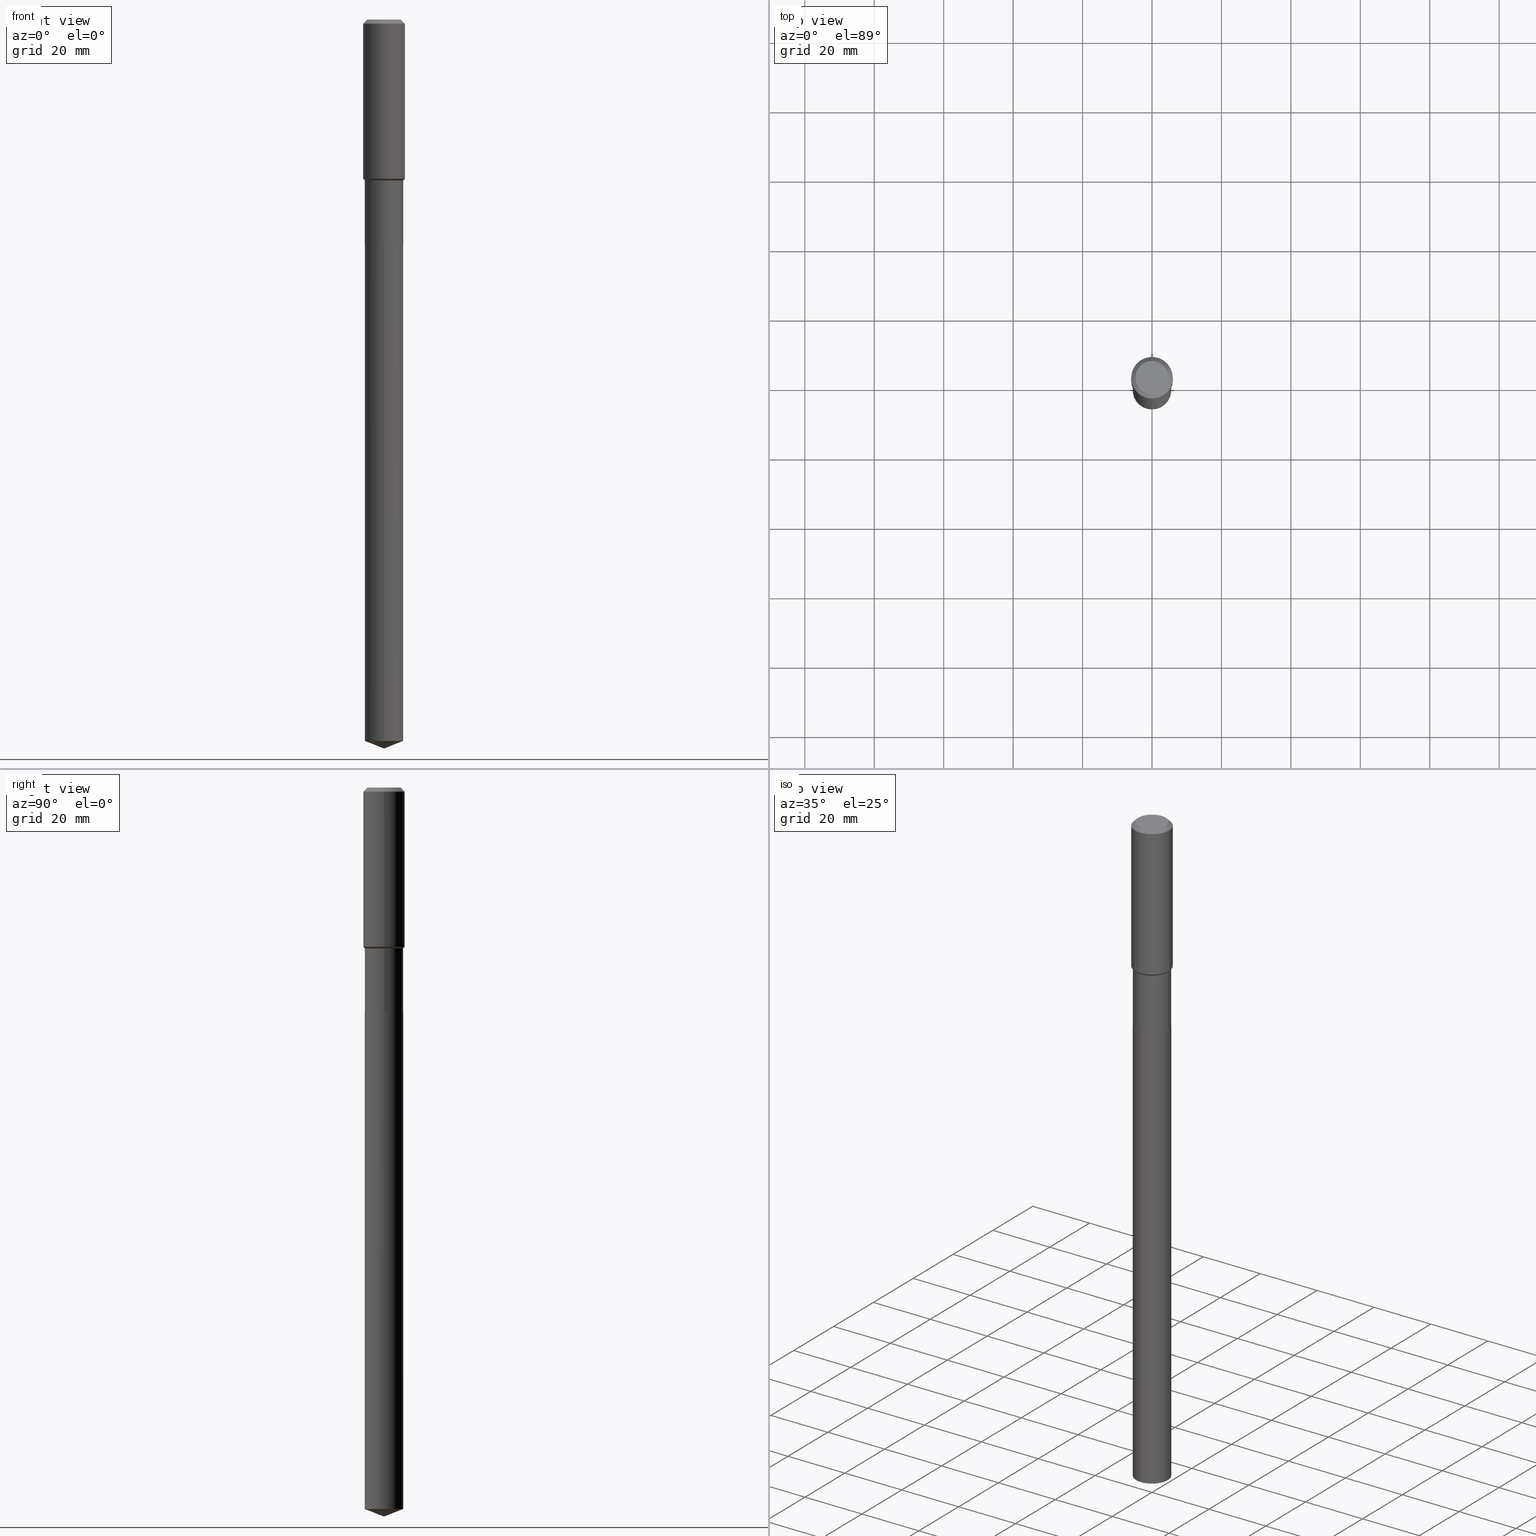
[diagram: canonical four-view strip — front | top / right | iso, engineering-drawing reading convention]
A machine part, canonical four-view strip (front | top / right | iso — engineering-drawing reading convention). The complete STEP part file that produces these views, byte-faithful:
ISO-10303-21;
HEADER;
FILE_DESCRIPTION (( 'STEP AP203' ),
    '1' );
FILE_NAME ('56533.STEP',
    '2024-04-24T18:20:22',
    ( '' ),
    ( '' ),
    'SwSTEP 2.0',
    'SolidWorks 2023',
    '' );
FILE_SCHEMA (( 'CONFIG_CONTROL_DESIGN' ));
ENDSEC;

DATA;
#1 = CONICAL_SURFACE ( 'NONE', #279, 99.94676754583925060, 1.195550537616117071 ) ;
#2 = CARTESIAN_POINT ( 'NONE',  ( 0.2187499999999998890, -7.897381640329306289E-15, -1.824400000000000244 ) ) ;
#3 = ADVANCED_FACE ( 'NONE', ( #439 ), #349, .F. ) ;
#4 = DIRECTION ( 'NONE',  ( -2.445468806185136597E-29, 3.491481338843145583E-15, 1.000000000000000000 ) ) ;
#5 = DIRECTION ( 'NONE',  ( -2.445468806185136597E-29, 3.491481338843145583E-15, 1.000000000000000000 ) ) ;
#6 = CIRCLE ( 'NONE', #78, 0.2362000000000002153 ) ;
#7 = VERTEX_POINT ( 'NONE', #358 ) ;
#8 = EDGE_CURVE ( 'NONE', #356, #156, #481, .T. ) ;
#9 = DIRECTION ( 'NONE',  ( -0.7071067811865461294, 7.493145998870349427E-15, 0.7071067811865489050 ) ) ;
#10 = VECTOR ( 'NONE', #82, 39.37007874015748143 ) ;
#11 = ORIENTED_EDGE ( 'NONE', *, *, #335, .T. ) ;
#12 = CARTESIAN_POINT ( 'NONE',  ( 1.554312234475420316E-15, 0.2187499999999911182, -2.546300000000000452 ) ) ;
#13 = DATE_TIME_ROLE ( 'classification_date' ) ;
#14 = ORIENTED_EDGE ( 'NONE', *, *, #475, .T. ) ;
#15 = LINE ( 'NONE', #56, #164 ) ;
#16 = ORIENTED_EDGE ( 'NONE', *, *, #340, .F. ) ;
#17 = ORIENTED_EDGE ( 'NONE', *, *, #157, .T. ) ;
#18 = ADVANCED_FACE ( 'NONE', ( #305 ), #81, .T. ) ;
#19 = DIRECTION ( 'NONE',  ( 0.000000000000000000, 0.000000000000000000, 1.000000000000000000 ) ) ;
#20 = CARTESIAN_POINT ( 'NONE',  ( 1.554312234475281279E-15, 0.2187499999999911182, -2.546300000000000452 ) ) ;
#21 = DIRECTION ( 'NONE',  ( 1.000000000000000000, -6.982962677686265922E-15, 4.876176775795935793E-29 ) ) ;
#22 = AXIS2_PLACEMENT_3D ( 'NONE', #38, #292, #115 ) ;
#23 = CC_DESIGN_DATE_AND_TIME_ASSIGNMENT ( #191, #13, ( #151 ) ) ;
#24 = ORIENTED_EDGE ( 'NONE', *, *, #91, .T. ) ;
#25 = EDGE_CURVE ( 'NONE', #51, #442, #420, .T. ) ;
#26 = DIRECTION ( 'NONE',  ( 1.000000000000000000, -6.982962677686266711E-15, 0.000000000000000000 ) ) ;
#27 = PERSON_AND_ORGANIZATION ( #197, #321 ) ;
#28 = ORIENTED_EDGE ( 'NONE', *, *, #25, .F. ) ;
#29 = EDGE_CURVE ( 'NONE', #276, #168, #309, .T. ) ;
#30 = EDGE_LOOP ( 'NONE', ( #61, #299, #58, #129 ) ) ;
#31 = VECTOR ( 'NONE', #41, 39.37007874015748143 ) ;
#32 = LOCAL_TIME ( 14, 20, 22.00000000000000000, #314 ) ;
#33 = DIRECTION ( 'NONE',  ( -2.445520389880296907E-29, 3.491407468055714377E-15, 1.000000000000000000 ) ) ;
#34 = EDGE_CURVE ( 'NONE', #442, #51, #177, .T. ) ;
#35 = AXIS2_PLACEMENT_3D ( 'NONE', #261, #72, #415 ) ;
#36 = DIRECTION ( 'NONE',  ( -2.445468806185136597E-29, 3.491481338843145583E-15, 1.000000000000000000 ) ) ;
#37 = CARTESIAN_POINT ( 'NONE',  ( 6.225674486786120359E-29, -8.888613192426879403E-15, -2.545799999999999841 ) ) ;
#38 = CARTESIAN_POINT ( 'NONE',  ( 1.155239464041865331E-30, -1.649375784469511612E-16, -0.04724000000000027483 ) ) ;
#39 = ADVANCED_FACE ( 'NONE', ( #331 ), #487, .F. ) ;
#40 = ADVANCED_FACE ( 'NONE', ( #255 ), #199, .T. ) ;
#41 = DIRECTION ( 'NONE',  ( -2.445468806185136877E-29, 3.491481338843145188E-15, 1.000000000000000000 ) ) ;
#42 = CARTESIAN_POINT ( 'NONE',  ( -7.606089907428060857E-28, 1.085898418882566516E-13, 31.10207874015748430 ) ) ;
#43 = AXIS2_PLACEMENT_3D ( 'NONE', #263, #5, #311 ) ;
#44 = DIRECTION ( 'NONE',  ( -6.982962677686265133E-15, -1.000000000000000000, 2.497689594207326371E-15 ) ) ;
#45 = PERSON_AND_ORGANIZATION ( #197, #321 ) ;
#46 = DIRECTION ( 'NONE',  ( 2.445468806185136597E-29, -3.491481338843145583E-15, -1.000000000000000000 ) ) ;
#47 = APPROVAL ( #123, 'UNSPECIFIED' ) ;
#48 = VECTOR ( 'NONE', #225, 39.37007874015748143 ) ;
#49 = PRODUCT_DEFINITION_FORMATION_WITH_SPECIFIED_SOURCE ( 'ANY', '', #488, .NOT_KNOWN. ) ;
#50 = CARTESIAN_POINT ( 'NONE',  ( -9.427742298522546243E-47, 1.346031739168365344E-32, 3.855188123715862256E-18 ) ) ;
#51 = VERTEX_POINT ( 'NONE', #373 ) ;
#52 = DIRECTION ( 'NONE',  ( 2.445468806185136597E-29, -3.491481338843145583E-15, -1.000000000000000000 ) ) ;
#53 = DATE_AND_TIME ( #476, #32 ) ;
#54 = ORIENTED_EDGE ( 'NONE', *, *, #460, .F. ) ;
#55 = EDGE_CURVE ( 'NONE', #228, #482, #113, .T. ) ;
#56 = CARTESIAN_POINT ( 'NONE',  ( 0.2361999999999999933, -1.785387205520586782E-15, -0.04724000000000027483 ) ) ;
#57 = COORDINATED_UNIVERSAL_TIME_OFFSET ( 5, 0, .BEHIND. ) ;
#58 = ORIENTED_EDGE ( 'NONE', *, *, #55, .T. ) ;
#59 = CIRCLE ( 'NONE', #322, 0.2182499999999999996 ) ;
#60 = DIRECTION ( 'NONE',  ( -2.445468806185136877E-29, 3.491481338843145188E-15, 1.000000000000000000 ) ) ;
#61 = ORIENTED_EDGE ( 'NONE', *, *, #281, .F. ) ;
#62 = CC_DESIGN_APPROVAL ( #300, ( #397 ) ) ;
#63 = ORIENTED_EDGE ( 'NONE', *, *, #490, .T. ) ;
#64 = CYLINDRICAL_SURFACE ( 'NONE', #258, 0.2187499999999999445 ) ;
#65 = DIRECTION ( 'NONE',  ( -2.438088387897960049E-29, 3.491481338843145188E-15, 1.000000000000000000 ) ) ;
#66 = LINE ( 'NONE', #391, #407 ) ;
#67 = DIRECTION ( 'NONE',  ( -2.445468806185136597E-29, 3.491481338843145583E-15, 1.000000000000000000 ) ) ;
#68 = AXIS2_PLACEMENT_3D ( 'NONE', #350, #52, #431 ) ;
#69 = CC_DESIGN_APPROVAL ( #47, ( #151 ) ) ;
#70 = CYLINDRICAL_SURFACE ( 'NONE', #239, 0.2362000000000001043 ) ;
#71 = DIRECTION ( 'NONE',  ( -2.445468806185136597E-29, 3.491481338843145583E-15, 1.000000000000000000 ) ) ;
#72 = DIRECTION ( 'NONE',  ( -2.445468806185136597E-29, 3.491481338843145583E-15, 1.000000000000000000 ) ) ;
#73 = CONICAL_SURFACE ( 'NONE', #135, 0.2187499999999998890, 0.7853981633974463916 ) ;
#74 = ORIENTED_EDGE ( 'NONE', *, *, #170, .T. ) ;
#75 = EDGE_CURVE ( 'NONE', #356, #110, #334, .T. ) ;
#76 = CARTESIAN_POINT ( 'NONE',  ( 0.2187499999999999445, -1.527523085743870449E-15, 1.066663669705360604E-29 ) ) ;
#77 = LINE ( 'NONE', #76, #31 ) ;
#78 = AXIS2_PLACEMENT_3D ( 'NONE', #219, #413, #218 ) ;
#79 = CIRCLE ( 'NONE', #375, 0.2187500000000000000 ) ;
#80 = DIRECTION ( 'NONE',  ( -2.445520389880296907E-29, 3.491407468055714377E-15, 1.000000000000000000 ) ) ;
#81 = CONICAL_SURFACE ( 'NONE', #459, 99.94676754583925060, 1.195550537616117071 ) ;
#82 = DIRECTION ( 'NONE',  ( -2.445520389880296907E-29, 3.491407468055714377E-15, 1.000000000000000000 ) ) ;
#83 = FACE_OUTER_BOUND ( 'NONE', #235, .T. ) ;
#84 = EDGE_CURVE ( 'NONE', #156, #90, #77, .T. ) ;
#85 =( NAMED_UNIT ( * ) SI_UNIT ( $, .STERADIAN. ) SOLID_ANGLE_UNIT ( ) );
#86 = DIRECTION ( 'NONE',  ( -2.445468806185136597E-29, 3.491481338843145583E-15, 1.000000000000000000 ) ) ;
#87 = VECTOR ( 'NONE', #9, 39.37007874015748143 ) ;
#88 = DIRECTION ( 'NONE',  ( -2.445468806185136877E-29, 3.491481338843145188E-15, 1.000000000000000000 ) ) ;
#89 = APPROVAL_DATE_TIME ( #53, #300 ) ;
#90 = VERTEX_POINT ( 'NONE', #2 ) ;
#91 = EDGE_CURVE ( 'NONE', #276, #482, #295, .T. ) ;
#92 = CARTESIAN_POINT ( 'NONE',  ( -0.2182499999999999996, -7.336950185125770658E-15, -2.546300000000000008 ) ) ;
#93 = PERSON_AND_ORGANIZATION ( #197, #321 ) ;
#94 = EDGE_LOOP ( 'NONE', ( #470, #389, #28 ) ) ;
#95 = ORIENTED_EDGE ( 'NONE', *, *, #34, .T. ) ;
#96 = APPROVAL_STATUS ( 'not_yet_approved' ) ;
#97 = EDGE_LOOP ( 'NONE', ( #316, #302, #140, #54 ) ) ;
#98 = ADVANCED_FACE ( 'NONE', ( #153 ), #457, .T. ) ;
#99 = CARTESIAN_POINT ( 'NONE',  ( 6.226897221189214281E-29, -8.890358933096301695E-15, -2.546300000000000008 ) ) ;
#100 = VECTOR ( 'NONE', #88, 39.37007874015748143 ) ;
#101 = DIRECTION ( 'NONE',  ( -2.445520389880296907E-29, 3.491407468055714377E-15, 1.000000000000000000 ) ) ;
#102 = PERSON_AND_ORGANIZATION_ROLE ( 'creator' ) ;
#103 = ORIENTED_EDGE ( 'NONE', *, *, #170, .F. ) ;
#104 = EDGE_CURVE ( 'NONE', #130, #442, #303, .T. ) ;
#105 = VECTOR ( 'NONE', #131, 39.37007874015748143 ) ;
#106 = EDGE_CURVE ( 'NONE', #51, #320, #301, .T. ) ;
#107 = CIRCLE ( 'NONE', #229, 0.2187500000000000000 ) ;
#108 = CC_DESIGN_PERSON_AND_ORGANIZATION_ASSIGNMENT ( #137, #441, ( #151 ) ) ;
#109 = CARTESIAN_POINT ( 'NONE',  ( 6.226897221189214281E-29, -8.890358933096301695E-15, -2.546300000000000008 ) ) ;
#110 = VERTEX_POINT ( 'NONE', #92 ) ;
#111 = CARTESIAN_POINT ( 'NONE',  ( 4.461513290004164048E-29, -6.369858554585436235E-15, -1.824400000000000244 ) ) ;
#112 = ADVANCED_FACE ( 'NONE', ( #306 ), #166, .T. ) ;
#113 = CIRCLE ( 'NONE', #22, 0.2361999999999999933 ) ;
#114 = CARTESIAN_POINT ( 'NONE',  ( -0.2361999999999999933, -1.558632949969428788E-15, -0.04724000000000027483 ) ) ;
#115 = DIRECTION ( 'NONE',  ( 1.000000000000000000, -6.982962677686266711E-15, 0.000000000000000000 ) ) ;
#116 = DIRECTION ( 'NONE',  ( 1.000000000000000000, -6.982962677686266711E-15, 0.000000000000000000 ) ) ;
#117 = DIRECTION ( 'NONE',  ( -0.7071067811865453523, 2.468850131082234184E-15, -0.7071067811865496822 ) ) ;
#118 = AXIS2_PLACEMENT_3D ( 'NONE', #143, #285, #408 ) ;
#119 = ADVANCED_FACE ( 'NONE', ( #463 ), #293, .T. ) ;
#120 = FACE_OUTER_BOUND ( 'NONE', #30, .T. ) ;
#121 = LINE ( 'NONE', #419, #376 ) ;
#122 = CARTESIAN_POINT ( 'NONE',  ( 0.1889600000000000168, -1.540873453589747738E-15, 3.855188123725863225E-18 ) ) ;
#123 = APPROVAL_STATUS ( 'not_yet_approved' ) ;
#124 = CARTESIAN_POINT ( 'NONE',  ( 2.000870583911335525E-28, -2.856629773575344102E-14, -8.181832083459232408 ) ) ;
#125 = CIRCLE ( 'NONE', #401, 0.2187500000000000000 ) ;
#126 = AXIS2_PLACEMENT_3D ( 'NONE', #365, #33, #489 ) ;
#127 = CARTESIAN_POINT ( 'NONE',  ( 1.155239464041865331E-30, -1.649375784469511612E-16, -0.04724000000000027483 ) ) ;
#128 = EDGE_LOOP ( 'NONE', ( #440, #146 ) ) ;
#129 = ORIENTED_EDGE ( 'NONE', *, *, #91, .F. ) ;
#130 = VERTEX_POINT ( 'NONE', #223 ) ;
#131 = DIRECTION ( 'NONE',  ( -2.445468806185136877E-29, 3.491481338843145188E-15, 1.000000000000000000 ) ) ;
#132 = PERSON_AND_ORGANIZATION ( #197, #321 ) ;
#133 = ORIENTED_EDGE ( 'NONE', *, *, #25, .T. ) ;
#134 = ORIENTED_EDGE ( 'NONE', *, *, #327, .T. ) ;
#135 = AXIS2_PLACEMENT_3D ( 'NONE', #111, #36, #294 ) ;
#136 = CC_DESIGN_PERSON_AND_ORGANIZATION_ASSIGNMENT ( #27, #277, ( #49 ) ) ;
#137 = PERSON_AND_ORGANIZATION ( #197, #321 ) ;
#138 = DIRECTION ( 'NONE',  ( 0.7071067811864267805, -2.468850131080992517E-15, 0.7071067811866682540 ) ) ;
#139 = CIRCLE ( 'NONE', #414, 0.2361999999999999933 ) ;
#140 = ORIENTED_EDGE ( 'NONE', *, *, #8, .T. ) ;
#141 = ORIENTED_EDGE ( 'NONE', *, *, #183, .T. ) ;
#142 = EDGE_CURVE ( 'NONE', #130, #51, #121, .T. ) ;
#143 = CARTESIAN_POINT ( 'NONE',  ( -9.427742298522546243E-47, 1.346031739168365344E-32, 3.855188123715862256E-18 ) ) ;
#144 = ORIENTED_EDGE ( 'NONE', *, *, #332, .F. ) ;
#145 = DIRECTION ( 'NONE',  ( 2.445520389880296626E-29, -3.491407468055714377E-15, -1.000000000000000000 ) ) ;
#146 = ORIENTED_EDGE ( 'NONE', *, *, #379, .F. ) ;
#147 = CC_DESIGN_PERSON_AND_ORGANIZATION_ASSIGNMENT ( #132, #102, ( #49 ) ) ;
#148 = FACE_OUTER_BOUND ( 'NONE', #94, .T. ) ;
#149 = DIRECTION ( 'NONE',  ( 1.000000000000000000, -6.982962677686264344E-15, 0.000000000000000000 ) ) ;
#150 = AXIS2_PLACEMENT_3D ( 'NONE', #158, #298, #44 ) ;
#151 = SECURITY_CLASSIFICATION ( '', '', #480 ) ;
#152 = LENGTH_MEASURE_WITH_UNIT ( LENGTH_MEASURE( 0.02539999999999999897 ), #262 );
#153 = FACE_OUTER_BOUND ( 'NONE', #383, .T. ) ;
#154 = CARTESIAN_POINT ( 'NONE',  ( -4.713871149261273121E-47, 6.730158695841826722E-33, 1.927594061857931128E-18 ) ) ;
#155 = DIRECTION ( 'NONE',  ( -1.000000000000000000, 6.982962677686266711E-15, 0.000000000000000000 ) ) ;
#156 = VERTEX_POINT ( 'NONE', #187 ) ;
#157 = EDGE_CURVE ( 'NONE', #442, #196, #466, .T. ) ;
#158 = CARTESIAN_POINT ( 'NONE',  ( 6.226897221189214281E-29, -8.890358933096301695E-15, -2.546300000000000008 ) ) ;
#159 = CALENDAR_DATE ( 2024, 24, 4 ) ;
#160 = EDGE_LOOP ( 'NONE', ( #192, #14, #169, #352 ) ) ;
#161 = DIRECTION ( 'NONE',  ( -2.445520389880296907E-29, 3.491407468055714377E-15, 1.000000000000000000 ) ) ;
#162 = COORDINATED_UNIVERSAL_TIME_OFFSET ( 5, 0, .BEHIND. ) ;
#163 = CARTESIAN_POINT ( 'NONE',  ( 0.2182499999999999996, -1.041439053750132874E-14, -2.546300000000000008 ) ) ;
#164 = VECTOR ( 'NONE', #198, 39.37007874015748143 ) ;
#165 = LOCAL_TIME ( 14, 20, 22.00000000000000000, #382 ) ;
#166 = CYLINDRICAL_SURFACE ( 'NONE', #430, 0.2187499999999999445 ) ;
#167 = DIRECTION ( 'NONE',  ( -2.445520389880296907E-29, 3.491407468055714377E-15, 1.000000000000000000 ) ) ;
#168 = VERTEX_POINT ( 'NONE', #122 ) ;
#169 = ORIENTED_EDGE ( 'NONE', *, *, #340, .T. ) ;
#170 = EDGE_CURVE ( 'NONE', #412, #436, #266, .T. ) ;
#171 = FACE_OUTER_BOUND ( 'NONE', #200, .T. ) ;
#172 = EDGE_LOOP ( 'NONE', ( #278, #384, #477, #393 ) ) ;
#173 = DIRECTION ( 'NONE',  ( -2.445468806185136597E-29, 3.491481338843145583E-15, 1.000000000000000000 ) ) ;
#174 = VECTOR ( 'NONE', #175, 39.37007874015748143 ) ;
#175 = DIRECTION ( 'NONE',  ( -0.7071067811864267805, 7.493145998869918709E-15, 0.7071067811866682540 ) ) ;
#176 = DIRECTION ( 'NONE',  ( -6.982962677686265133E-15, -1.000000000000000000, 4.995379188414652742E-15 ) ) ;
#177 = CIRCLE ( 'NONE', #126, 0.2187500000000000000 ) ;
#178 = EDGE_CURVE ( 'NONE', #156, #412, #107, .T. ) ;
#179 = DIRECTION ( 'NONE',  ( -2.445468806185136597E-29, 3.491481338843145583E-15, 1.000000000000000000 ) ) ;
#180 = CIRCLE ( 'NONE', #221, 0.2187499999999998890 ) ;
#181 = AXIS2_PLACEMENT_3D ( 'NONE', #396, #65, #21 ) ;
#182 = LOCAL_TIME ( 14, 20, 22.00000000000000000, #162 ) ;
#183 = EDGE_CURVE ( 'NONE', #436, #7, #342, .T. ) ;
#184 = FACE_OUTER_BOUND ( 'NONE', #478, .T. ) ;
#185 = EDGE_LOOP ( 'NONE', ( #103, #341, #399, #345 ) ) ;
#186 = ORIENTED_EDGE ( 'NONE', *, *, #106, .T. ) ;
#187 = CARTESIAN_POINT ( 'NONE',  ( 0.2187500000000000000, -1.041613627817074946E-14, -2.545799999999999841 ) ) ;
#188 = CC_DESIGN_PERSON_AND_ORGANIZATION_ASSIGNMENT ( #243, #355, ( #397 ) ) ;
#189 = AXIS2_PLACEMENT_3D ( 'NONE', #289, #145, #449 ) ;
#190 = DIRECTION ( 'NONE',  ( -2.445468806185136597E-29, 3.491481338843145583E-15, 1.000000000000000000 ) ) ;
#191 = DATE_AND_TIME ( #159, #165 ) ;
#192 = ORIENTED_EDGE ( 'NONE', *, *, #183, .F. ) ;
#193 = VERTEX_POINT ( 'NONE', #348 ) ;
#194 = DIRECTION ( 'NONE',  ( 2.438088387897960049E-29, -3.491481338843145188E-15, -1.000000000000000000 ) ) ;
#195 = CALENDAR_DATE ( 2024, 24, 4 ) ;
#196 = VERTEX_POINT ( 'NONE', #234 ) ;
#197 = PERSON ( 'UNSPECIFIED', 'UNSPECIFIED', 'UNSPECIFIED', ('UNSPECIFIED'), ('UNSPECIFIED'), ('UNSPECIFIED') ) ;
#198 = DIRECTION ( 'NONE',  ( 0.7071067811865453523, -7.319954787623248157E-15, -0.7071067811865496822 ) ) ;
#199 = CONICAL_SURFACE ( 'NONE', #241, 0.2182499999999999996, 0.7853981633972775267 ) ;
#200 = EDGE_LOOP ( 'NONE', ( #386, #473, #203, #313 ) ) ;
#201 = EDGE_CURVE ( 'NONE', #482, #228, #139, .T. ) ;
#202 = EDGE_CURVE ( 'NONE', #168, #228, #15, .T. ) ;
#203 = ORIENTED_EDGE ( 'NONE', *, *, #360, .T. ) ;
#204 = DIRECTION ( 'NONE',  ( -2.445468806185136597E-29, 3.491481338843145583E-15, 1.000000000000000000 ) ) ;
#205 = ORIENTED_EDGE ( 'NONE', *, *, #178, .T. ) ;
#206 = CARTESIAN_POINT ( 'NONE',  ( 6.226897221189214281E-29, -8.890358933096301695E-15, -2.546300000000000008 ) ) ;
#207 = DIRECTION ( 'NONE',  ( 0.7071067811865461294, -2.468850131082242072E-15, 0.7071067811865489050 ) ) ;
#208 = AXIS2_PLACEMENT_3D ( 'NONE', #154, #194, #458 ) ;
#209 = CALENDAR_DATE ( 2024, 24, 4 ) ;
#210 = EDGE_LOOP ( 'NONE', ( #429, #467, #213 ) ) ;
#211 = CYLINDRICAL_SURFACE ( 'NONE', #390, 0.2187500000000000000 ) ;
#212 = AXIS2_PLACEMENT_3D ( 'NONE', #330, #247, #433 ) ;
#213 = ORIENTED_EDGE ( 'NONE', *, *, #34, .F. ) ;
#214 = LINE ( 'NONE', #483, #174 ) ;
#215 = CYLINDRICAL_SURFACE ( 'NONE', #447, 0.2362000000000001043 ) ;
#216 = CLOSED_SHELL ( 'NONE', ( #40, #273, #450, #425, #371, #112, #445, #438, #249, #254, #3, #119 ) ) ;
#217 = APPROVAL ( #351, 'UNSPECIFIED' ) ;
#218 = DIRECTION ( 'NONE',  ( 1.000000000000000000, -6.982962677686266711E-15, 0.000000000000000000 ) ) ;
#219 = CARTESIAN_POINT ( 'NONE',  ( 4.418839859336232115E-29, -6.308932205222621422E-15, -1.806950000000000056 ) ) ;
#220 = DIRECTION ( 'NONE',  ( -6.982962677686265133E-15, -1.000000000000000000, 2.497689594207326371E-15 ) ) ;
#221 = AXIS2_PLACEMENT_3D ( 'NONE', #374, #4, #116 ) ;
#222 = AXIS2_PLACEMENT_3D ( 'NONE', #50, #190, #344 ) ;
#223 = CARTESIAN_POINT ( 'NONE',  ( 2.021956258353029644E-28, -2.886695694588464652E-14, -8.268000000000000682 ) ) ;
#224 = MECHANICAL_CONTEXT ( 'NONE', #354, 'mechanical' ) ;
#225 = DIRECTION ( 'NONE',  ( -6.497071151882113525E-15, -0.9304175679820235745, 0.3665012267242993560 ) ) ;
#226 = CC_DESIGN_DATE_AND_TIME_ASSIGNMENT ( #388, #464, ( #397 ) ) ;
#227 = DIRECTION ( 'NONE',  ( -2.445468806185136597E-29, 3.491481338843145583E-15, 1.000000000000000000 ) ) ;
#228 = VERTEX_POINT ( 'NONE', #274 ) ;
#229 = AXIS2_PLACEMENT_3D ( 'NONE', #427, #86, #378 ) ;
#230 = ORIENTED_EDGE ( 'NONE', *, *, #201, .T. ) ;
#231 = DIRECTION ( 'NONE',  ( 1.000000000000000000, -6.982962677686266711E-15, 0.000000000000000000 ) ) ;
#232 = COORDINATED_UNIVERSAL_TIME_OFFSET ( 5, 0, .BEHIND. ) ;
#233 = ORIENTED_EDGE ( 'NONE', *, *, #332, .T. ) ;
#234 = CARTESIAN_POINT ( 'NONE',  ( -1.527523085743808128E-15, -0.2187500000000088540, -2.546299999999999564 ) ) ;
#235 = EDGE_LOOP ( 'NONE', ( #347, #333 ) ) ;
#236 = DATE_AND_TIME ( #209, #324 ) ;
#237 = APPROVAL_ROLE ( '' ) ;
#238 = ORIENTED_EDGE ( 'NONE', *, *, #202, .F. ) ;
#239 = AXIS2_PLACEMENT_3D ( 'NONE', #328, #71, #479 ) ;
#240 = FACE_OUTER_BOUND ( 'NONE', #398, .T. ) ;
#241 = AXIS2_PLACEMENT_3D ( 'NONE', #99, #67, #149 ) ;
#242 = DIMENSIONAL_EXPONENTS ( 1.000000000000000000, 0.000000000000000000, 0.000000000000000000, 0.000000000000000000, 0.000000000000000000, 0.000000000000000000, 0.000000000000000000 ) ;
#243 = PERSON_AND_ORGANIZATION ( #197, #321 ) ;
#244 = ORIENTED_EDGE ( 'NONE', *, *, #360, .F. ) ;
#245 = DIRECTION ( 'NONE',  ( 1.000000000000000000, -6.982962677686266711E-15, 4.876176775795935232E-29 ) ) ;
#246 = CARTESIAN_POINT ( 'NONE',  ( -1.527523085743670472E-15, -0.2187500000000286160, -8.181832083459230631 ) ) ;
#247 = DIRECTION ( 'NONE',  ( -2.445468806185136597E-29, 3.491481338843145583E-15, 1.000000000000000000 ) ) ;
#248 = ORIENTED_EDGE ( 'NONE', *, *, #157, .F. ) ;
#249 = ADVANCED_FACE ( 'NONE', ( #184 ), #272, .T. ) ;
#250 = CONICAL_SURFACE ( 'NONE', #426, 0.2187499999999998890, 0.7853981633974463916 ) ;
#251 = FACE_OUTER_BOUND ( 'NONE', #312, .T. ) ;
#252 = CONICAL_SURFACE ( 'NONE', #448, 0.2361999999999999933, 0.7853981633974452814 ) ;
#253 = CC_DESIGN_SECURITY_CLASSIFICATION ( #151, ( #49 ) ) ;
#254 = ADVANCED_FACE ( 'NONE', ( #83 ), #339, .F. ) ;
#255 = FACE_OUTER_BOUND ( 'NONE', #172, .T. ) ;
#256 =( GEOMETRIC_REPRESENTATION_CONTEXT ( 3 ) GLOBAL_UNCERTAINTY_ASSIGNED_CONTEXT ( ( #485 ) ) GLOBAL_UNIT_ASSIGNED_CONTEXT ( ( #296, #422, #85 ) ) REPRESENTATION_CONTEXT ( 'NONE', 'WORKASPACE' ) );
#257 = DIRECTION ( 'NONE',  ( 1.000000000000000000, -6.982962677686266711E-15, 4.876176775795935793E-29 ) ) ;
#258 = AXIS2_PLACEMENT_3D ( 'NONE', #474, #317, #245 ) ;
#259 = LOCAL_TIME ( 14, 20, 22.00000000000000000, #57 ) ;
#260 = CLOSED_SHELL ( 'NONE', ( #417, #18, #444, #98, #39 ) ) ;
#261 = CARTESIAN_POINT ( 'NONE',  ( 6.226897221189214281E-29, -8.890358933096301695E-15, -2.546300000000000008 ) ) ;
#262 =( LENGTH_UNIT ( ) NAMED_UNIT ( * ) SI_UNIT ( $, .METRE. ) );
#263 = CARTESIAN_POINT ( 'NONE',  ( 6.226897221189214281E-29, -8.890358933096301695E-15, -2.546300000000000008 ) ) ;
#264 = APPROVAL_PERSON_ORGANIZATION ( #93, #300, #428 ) ;
#265 = CARTESIAN_POINT ( 'NONE',  ( 0.000000000000000000, 0.000000000000000000, 0.000000000000000000 ) ) ;
#266 = LINE ( 'NONE', #423, #100 ) ;
#267 = PRODUCT_RELATED_PRODUCT_CATEGORY ( 'detail', '', ( #488 ) ) ;
#268 = ORIENTED_EDGE ( 'NONE', *, *, #327, .F. ) ;
#269 = DIRECTION ( 'NONE',  ( 6.611014441532060278E-15, 0.9304175679820263500, 0.3665012267242928057 ) ) ;
#270 = APPROVAL_ROLE ( '' ) ;
#271 = DIRECTION ( 'NONE',  ( -2.445520389880296907E-29, 3.491407468055714377E-15, 1.000000000000000000 ) ) ;
#272 = CONICAL_SURFACE ( 'NONE', #68, 0.2361999999999999933, 0.7853981633974452814 ) ;
#273 = ADVANCED_FACE ( 'NONE', ( #120 ), #252, .T. ) ;
#274 = CARTESIAN_POINT ( 'NONE',  ( 0.2361999999999999933, -1.814313362916447440E-15, -0.04724000000000027483 ) ) ;
#275 = ORIENTED_EDGE ( 'NONE', *, *, #84, .F. ) ;
#276 = VERTEX_POINT ( 'NONE', #381 ) ;
#277 = PERSON_AND_ORGANIZATION_ROLE ( 'design_supplier' ) ;
#278 = ORIENTED_EDGE ( 'NONE', *, *, #75, .T. ) ;
#279 = AXIS2_PLACEMENT_3D ( 'NONE', #42, #416, #456 ) ;
#280 = LINE ( 'NONE', #443, #105 ) ;
#281 = EDGE_CURVE ( 'NONE', #168, #276, #468, .T. ) ;
#282 = ORIENTED_EDGE ( 'NONE', *, *, #29, .F. ) ;
#283 = DIRECTION ( 'NONE',  ( -6.982962677686265133E-15, -1.000000000000000000, 2.497689594207326371E-15 ) ) ;
#284 = AXIS2_PLACEMENT_3D ( 'NONE', #346, #19, #308 ) ;
#285 = DIRECTION ( 'NONE',  ( -2.445468806185136597E-29, 3.491481338843145583E-15, 1.000000000000000000 ) ) ;
#286 = CIRCLE ( 'NONE', #410, 0.2187500000000000000 ) ;
#287 = DIRECTION ( 'NONE',  ( -2.445520389880296907E-29, 3.491407468055714377E-15, 1.000000000000000000 ) ) ;
#288 = CC_DESIGN_PERSON_AND_ORGANIZATION_ASSIGNMENT ( #45, #472, ( #488 ) ) ;
#289 = CARTESIAN_POINT ( 'NONE',  ( 6.226897221189214281E-29, -8.890358933096301695E-15, -2.546300000000000008 ) ) ;
#290 = ORIENTED_EDGE ( 'NONE', *, *, #106, .F. ) ;
#291 = DIRECTION ( 'NONE',  ( 1.000000000000000000, -6.982962677686262766E-15, 0.000000000000000000 ) ) ;
#292 = DIRECTION ( 'NONE',  ( -2.445468806185136597E-29, 3.491481338843145583E-15, 1.000000000000000000 ) ) ;
#293 = CONICAL_SURFACE ( 'NONE', #43, 0.2182499999999999996, 0.7853981633972775267 ) ;
#294 = DIRECTION ( 'NONE',  ( 1.000000000000000000, -6.982962677686266711E-15, 0.000000000000000000 ) ) ;
#295 = LINE ( 'NONE', #337, #325 ) ;
#296 =( CONVERSION_BASED_UNIT ( 'INCH', #152 ) LENGTH_UNIT ( ) NAMED_UNIT ( #242 ) );
#297 = APPLICATION_CONTEXT ( 'configuration controlled 3d designs of mechanical parts and assemblies' ) ;
#298 = DIRECTION ( 'NONE',  ( -2.445520389880296907E-29, 3.491407468055714377E-15, 1.000000000000000000 ) ) ;
#299 = ORIENTED_EDGE ( 'NONE', *, *, #202, .T. ) ;
#300 = APPROVAL ( #96, 'UNSPECIFIED' ) ;
#301 = LINE ( 'NONE', #20, #343 ) ;
#302 = ORIENTED_EDGE ( 'NONE', *, *, #379, .T. ) ;
#303 = LINE ( 'NONE', #461, #48 ) ;
#304 = PERSON_AND_ORGANIZATION ( #197, #321 ) ;
#305 = FACE_OUTER_BOUND ( 'NONE', #210, .T. ) ;
#306 = FACE_OUTER_BOUND ( 'NONE', #185, .T. ) ;
#307 = CARTESIAN_POINT ( 'NONE',  ( -7.606089907428060857E-28, 1.085898418882566516E-13, 31.10207874015748430 ) ) ;
#308 = DIRECTION ( 'NONE',  ( 1.000000000000000000, 0.000000000000000000, 0.000000000000000000 ) ) ;
#309 = CIRCLE ( 'NONE', #118, 0.1889600000000000168 ) ;
#310 = APPROVAL_DATE_TIME ( #236, #47 ) ;
#311 = DIRECTION ( 'NONE',  ( 1.000000000000000000, -6.982962677686264344E-15, 0.000000000000000000 ) ) ;
#312 = EDGE_LOOP ( 'NONE', ( #95, #186, #366, #248 ) ) ;
#313 = ORIENTED_EDGE ( 'NONE', *, *, #201, .F. ) ;
#314 = COORDINATED_UNIVERSAL_TIME_OFFSET ( 5, 0, .BEHIND. ) ;
#315 = EDGE_LOOP ( 'NONE', ( #424, #63 ) ) ;
#316 = ORIENTED_EDGE ( 'NONE', *, *, #403, .F. ) ;
#317 = DIRECTION ( 'NONE',  ( -2.445468806185136597E-29, 3.491481338843145583E-15, 1.000000000000000000 ) ) ;
#318 = DIRECTION ( 'NONE',  ( -6.982962677686265133E-15, -1.000000000000000000, 2.497689594207326371E-15 ) ) ;
#319 = APPROVAL_DATE_TIME ( #395, #217 ) ;
#320 = VERTEX_POINT ( 'NONE', #12 ) ;
#321 = ORGANIZATION ( 'UNSPECIFIED', 'UNSPECIFIED', '' ) ;
#322 = AXIS2_PLACEMENT_3D ( 'NONE', #206, #173, #359 ) ;
#323 = CARTESIAN_POINT ( 'NONE',  ( 6.226897221189214281E-29, -8.890358933096301695E-15, -2.546300000000000008 ) ) ;
#324 = LOCAL_TIME ( 14, 20, 22.00000000000000000, #232 ) ;
#325 = VECTOR ( 'NONE', #117, 39.37007874015748143 ) ;
#326 = VECTOR ( 'NONE', #207, 39.37007874015748143 ) ;
#327 = EDGE_CURVE ( 'NONE', #193, #7, #363, .T. ) ;
#328 = CARTESIAN_POINT ( 'NONE',  ( 0.000000000000000000, 0.000000000000000000, 0.000000000000000000 ) ) ;
#329 = DESIGN_CONTEXT ( 'detailed design', #297, 'design' ) ;
#330 = CARTESIAN_POINT ( 'NONE',  ( 4.461513290004164048E-29, -6.369858554585436235E-15, -1.824400000000000244 ) ) ;
#331 = FACE_OUTER_BOUND ( 'NONE', #315, .T. ) ;
#332 = EDGE_CURVE ( 'NONE', #90, #436, #454, .T. ) ;
#333 = ORIENTED_EDGE ( 'NONE', *, *, #281, .T. ) ;
#334 = CIRCLE ( 'NONE', #35, 0.2182499999999999996 ) ;
#335 = EDGE_CURVE ( 'NONE', #7, #482, #66, .T. ) ;
#336 = APPROVAL_PERSON_ORGANIZATION ( #304, #47, #270 ) ;
#337 = CARTESIAN_POINT ( 'NONE',  ( -0.2361999999999999933, 1.484438206022545019E-15, -0.04724000000000027483 ) ) ;
#338 = EDGE_LOOP ( 'NONE', ( #134, #11, #432, #244 ) ) ;
#339 = PLANE ( 'NONE',  #208 ) ;
#340 = EDGE_CURVE ( 'NONE', #90, #193, #353, .T. ) ;
#341 = ORIENTED_EDGE ( 'NONE', *, *, #460, .T. ) ;
#342 = LINE ( 'NONE', #421, #87 ) ;
#343 = VECTOR ( 'NONE', #161, 39.37007874015748143 ) ;
#344 = DIRECTION ( 'NONE',  ( 1.000000000000000000, -6.982962677686266711E-15, 4.876185090822587894E-29 ) ) ;
#345 = ORIENTED_EDGE ( 'NONE', *, *, #475, .F. ) ;
#346 = CARTESIAN_POINT ( 'NONE',  ( 0.000000000000000000, 0.000000000000000000, 0.000000000000000000 ) ) ;
#347 = ORIENTED_EDGE ( 'NONE', *, *, #29, .T. ) ;
#348 = CARTESIAN_POINT ( 'NONE',  ( 0.2362000000000002153, -7.958307989692118736E-15, -1.806950000000000056 ) ) ;
#349 = PLANE ( 'NONE',  #181 ) ;
#350 = CARTESIAN_POINT ( 'NONE',  ( 1.155239464041865331E-30, -1.649375784469511612E-16, -0.04724000000000027483 ) ) ;
#351 = APPROVAL_STATUS ( 'not_yet_approved' ) ;
#352 = ORIENTED_EDGE ( 'NONE', *, *, #455, .F. ) ;
#353 = LINE ( 'NONE', #484, #326 ) ;
#354 = APPLICATION_CONTEXT ( 'configuration controlled 3d designs of mechanical parts and assemblies' ) ;
#355 = PERSON_AND_ORGANIZATION_ROLE ( 'creator' ) ;
#356 = VERTEX_POINT ( 'NONE', #361 ) ;
#357 = PERSON_AND_ORGANIZATION ( #197, #321 ) ;
#358 = CARTESIAN_POINT ( 'NONE',  ( -0.2362000000000002153, -4.630630263357264239E-15, -1.806950000000000056 ) ) ;
#359 = DIRECTION ( 'NONE',  ( 1.000000000000000000, -6.982962677686264344E-15, 0.000000000000000000 ) ) ;
#360 = EDGE_CURVE ( 'NONE', #193, #228, #280, .T. ) ;
#361 = CARTESIAN_POINT ( 'NONE',  ( 0.2182499999999999996, -1.041439053750132874E-14, -2.546300000000000008 ) ) ;
#362 = MANIFOLD_SOLID_BREP ( 'Body-Move/Copy2[1]', #260 ) ;
#363 = CIRCLE ( 'NONE', #369, 0.2362000000000002153 ) ;
#364 = EDGE_LOOP ( 'NONE', ( #205, #74, #144, #275 ) ) ;
#365 = CARTESIAN_POINT ( 'NONE',  ( 2.000870583911335525E-28, -2.856629773575344102E-14, -8.181832083459232408 ) ) ;
#366 = ORIENTED_EDGE ( 'NONE', *, *, #411, .F. ) ;
#367 = AXIS2_PLACEMENT_3D ( 'NONE', #124, #271, #176 ) ;
#368 = CC_DESIGN_APPROVAL ( #217, ( #49 ) ) ;
#369 = AXIS2_PLACEMENT_3D ( 'NONE', #400, #204, #486 ) ;
#370 = MANIFOLD_SOLID_BREP ( 'Body-Move/Copy2[2]', #216 ) ;
#371 = ADVANCED_FACE ( 'NONE', ( #437 ), #64, .T. ) ;
#372 = FACE_OUTER_BOUND ( 'NONE', #160, .T. ) ;
#373 = CARTESIAN_POINT ( 'NONE',  ( 1.554312234475419527E-15, 0.2187499999999714395, -8.181832083459232408 ) ) ;
#374 = CARTESIAN_POINT ( 'NONE',  ( 4.461513290004164048E-29, -6.369858554585436235E-15, -1.824400000000000244 ) ) ;
#375 = AXIS2_PLACEMENT_3D ( 'NONE', #323, #287, #283 ) ;
#376 = VECTOR ( 'NONE', #269, 39.37007874015748143 ) ;
#377 = APPROVAL_PERSON_ORGANIZATION ( #357, #217, #237 ) ;
#378 = DIRECTION ( 'NONE',  ( 1.000000000000000000, -6.982962677686262766E-15, 0.000000000000000000 ) ) ;
#379 = EDGE_CURVE ( 'NONE', #110, #356, #59, .T. ) ;
#380 = CARTESIAN_POINT ( 'NONE',  ( 1.155239464041865331E-30, -1.649375784469511612E-16, -0.04724000000000027483 ) ) ;
#381 = CARTESIAN_POINT ( 'NONE',  ( -0.1889600000000000168, 1.401969416799070942E-15, 3.855188123706346622E-18 ) ) ;
#382 = COORDINATED_UNIVERSAL_TIME_OFFSET ( 5, 0, .BEHIND. ) ;
#383 = EDGE_LOOP ( 'NONE', ( #290, #133, #17, #435 ) ) ;
#384 = ORIENTED_EDGE ( 'NONE', *, *, #403, .T. ) ;
#385 = CARTESIAN_POINT ( 'NONE',  ( -1.527523085743808128E-15, -0.2187500000000088540, -2.546299999999999564 ) ) ;
#386 = ORIENTED_EDGE ( 'NONE', *, *, #335, .F. ) ;
#387 = DIRECTION ( 'NONE',  ( 1.000000000000000000, -6.982962677686266711E-15, 4.876176775795935232E-29 ) ) ;
#388 = DATE_AND_TIME ( #392, #182 ) ;
#389 = ORIENTED_EDGE ( 'NONE', *, *, #104, .T. ) ;
#390 = AXIS2_PLACEMENT_3D ( 'NONE', #109, #101, #318 ) ;
#391 = CARTESIAN_POINT ( 'NONE',  ( -0.2362000000000001043, 1.678301941865357380E-15, -1.161852468318209317E-29 ) ) ;
#392 = CALENDAR_DATE ( 2024, 24, 4 ) ;
#393 = ORIENTED_EDGE ( 'NONE', *, *, #8, .F. ) ;
#394 = CARTESIAN_POINT ( 'NONE',  ( -0.2187499999999998890, -6.074923639030938662E-15, -1.824400000000000244 ) ) ;
#395 = DATE_AND_TIME ( #195, #259 ) ;
#396 = CARTESIAN_POINT ( 'NONE',  ( 6.226897221189214281E-29, -8.890358933096301695E-15, -2.546300000000000008 ) ) ;
#397 = PRODUCT_DEFINITION ( 'UNKNOWN', '', #49, #329 ) ;
#398 = EDGE_LOOP ( 'NONE', ( #233, #141, #268, #16 ) ) ;
#399 = ORIENTED_EDGE ( 'NONE', *, *, #84, .T. ) ;
#400 = CARTESIAN_POINT ( 'NONE',  ( 4.418839859336232115E-29, -6.308932205222621422E-15, -1.806950000000000056 ) ) ;
#401 = AXIS2_PLACEMENT_3D ( 'NONE', #37, #179, #291 ) ;
#402 = ADVANCED_BREP_SHAPE_REPRESENTATION ( '56533', ( #362, #370, #284 ), #256 ) ;
#403 = EDGE_CURVE ( 'NONE', #110, #412, #214, .T. ) ;
#404 = DIRECTION ( 'NONE',  ( -2.445468806185136597E-29, 3.491481338843145583E-15, 1.000000000000000000 ) ) ;
#405 = PRODUCT_DEFINITION_SHAPE ( 'NONE', 'NONE',  #397 ) ;
#406 = CARTESIAN_POINT ( 'NONE',  ( 4.461513290004164048E-29, -6.369858554585436235E-15, -1.824400000000000244 ) ) ;
#407 = VECTOR ( 'NONE', #60, 39.37007874015748143 ) ;
#408 = DIRECTION ( 'NONE',  ( 1.000000000000000000, -6.982962677686266711E-15, 4.876185090822587894E-29 ) ) ;
#409 = DIRECTION ( 'NONE',  ( -2.445468806185136597E-29, 3.491481338843145583E-15, 1.000000000000000000 ) ) ;
#410 = AXIS2_PLACEMENT_3D ( 'NONE', #451, #80, #220 ) ;
#411 = EDGE_CURVE ( 'NONE', #196, #320, #79, .T. ) ;
#412 = VERTEX_POINT ( 'NONE', #446 ) ;
#413 = DIRECTION ( 'NONE',  ( -2.445468806185136597E-29, 3.491481338843145583E-15, 1.000000000000000000 ) ) ;
#414 = AXIS2_PLACEMENT_3D ( 'NONE', #127, #227, #231 ) ;
#415 = DIRECTION ( 'NONE',  ( 1.000000000000000000, -6.982962677686264344E-15, 0.000000000000000000 ) ) ;
#416 = DIRECTION ( 'NONE',  ( -2.445520389880296907E-29, 3.491407468055714377E-15, 1.000000000000000000 ) ) ;
#417 = ADVANCED_FACE ( 'NONE', ( #251 ), #211, .T. ) ;
#418 = FACE_OUTER_BOUND ( 'NONE', #338, .T. ) ;
#419 = CARTESIAN_POINT ( 'NONE',  ( 2.021956488705646755E-28, -2.886695694588464652E-14, -8.268000000000000682 ) ) ;
#420 = CIRCLE ( 'NONE', #367, 0.2187500000000000000 ) ;
#421 = CARTESIAN_POINT ( 'NONE',  ( -0.2187499999999998890, -4.815546320110218656E-15, -1.824400000000000244 ) ) ;
#422 =( NAMED_UNIT ( * ) PLANE_ANGLE_UNIT ( ) SI_UNIT ( $, .RADIAN. ) );
#423 = CARTESIAN_POINT ( 'NONE',  ( -0.2187499999999999445, 1.554312234475218762E-15, -1.076017050993260482E-29 ) ) ;
#424 = ORIENTED_EDGE ( 'NONE', *, *, #411, .T. ) ;
#425 = ADVANCED_FACE ( 'NONE', ( #240 ), #250, .T. ) ;
#426 = AXIS2_PLACEMENT_3D ( 'NONE', #406, #404, #26 ) ;
#427 = CARTESIAN_POINT ( 'NONE',  ( 6.225674486786120359E-29, -8.888613192426879403E-15, -2.545799999999999841 ) ) ;
#428 = APPROVAL_ROLE ( '' ) ;
#429 = ORIENTED_EDGE ( 'NONE', *, *, #104, .F. ) ;
#430 = AXIS2_PLACEMENT_3D ( 'NONE', #265, #471, #387 ) ;
#431 = DIRECTION ( 'NONE',  ( -1.000000000000000000, 6.982962677686266711E-15, 0.000000000000000000 ) ) ;
#432 = ORIENTED_EDGE ( 'NONE', *, *, #55, .F. ) ;
#433 = DIRECTION ( 'NONE',  ( 1.000000000000000000, -6.982962677686266711E-15, 0.000000000000000000 ) ) ;
#434 = APPLICATION_PROTOCOL_DEFINITION ( 'international standard', 'config_control_design', 1994, #297 ) ;
#435 = ORIENTED_EDGE ( 'NONE', *, *, #490, .F. ) ;
#436 = VERTEX_POINT ( 'NONE', #394 ) ;
#437 = FACE_OUTER_BOUND ( 'NONE', #364, .T. ) ;
#438 = ADVANCED_FACE ( 'NONE', ( #171 ), #70, .T. ) ;
#439 = FACE_OUTER_BOUND ( 'NONE', #128, .T. ) ;
#440 = ORIENTED_EDGE ( 'NONE', *, *, #75, .F. ) ;
#441 = PERSON_AND_ORGANIZATION_ROLE ( 'classification_officer' ) ;
#442 = VERTEX_POINT ( 'NONE', #246 ) ;
#443 = CARTESIAN_POINT ( 'NONE',  ( 0.2362000000000001043, -1.649375784469496920E-15, 1.151752954443000508E-29 ) ) ;
#444 = ADVANCED_FACE ( 'NONE', ( #148 ), #1, .T. ) ;
#445 = ADVANCED_FACE ( 'NONE', ( #372 ), #73, .T. ) ;
#446 = CARTESIAN_POINT ( 'NONE',  ( -0.2187500000000000000, -6.074923639030938662E-15, -2.545799999999999841 ) ) ;
#447 = AXIS2_PLACEMENT_3D ( 'NONE', #453, #409, #257 ) ;
#448 = AXIS2_PLACEMENT_3D ( 'NONE', #380, #46, #155 ) ;
#449 = DIRECTION ( 'NONE',  ( 6.982962677686265922E-15, 1.000000000000000000, -3.491407468055714377E-15 ) ) ;
#450 = ADVANCED_FACE ( 'NONE', ( #418 ), #215, .T. ) ;
#451 = CARTESIAN_POINT ( 'NONE',  ( 6.226897221189214281E-29, -8.890358933096301695E-15, -2.546300000000000008 ) ) ;
#452 = VECTOR ( 'NONE', #138, 39.37007874015748143 ) ;
#453 = CARTESIAN_POINT ( 'NONE',  ( 0.000000000000000000, 0.000000000000000000, 0.000000000000000000 ) ) ;
#454 = CIRCLE ( 'NONE', #212, 0.2187499999999998890 ) ;
#455 = EDGE_CURVE ( 'NONE', #7, #193, #6, .T. ) ;
#456 = DIRECTION ( 'NONE',  ( -6.982962677686265922E-15, -1.000000000000000000, 3.498627837350029466E-15 ) ) ;
#457 = CYLINDRICAL_SURFACE ( 'NONE', #150, 0.2187500000000000000 ) ;
#458 = DIRECTION ( 'NONE',  ( -1.000000000000000000, 6.982962677686265922E-15, -4.876176775795935793E-29 ) ) ;
#459 = AXIS2_PLACEMENT_3D ( 'NONE', #307, #167, #465 ) ;
#460 = EDGE_CURVE ( 'NONE', #412, #156, #125, .T. ) ;
#461 = CARTESIAN_POINT ( 'NONE',  ( 2.021929988840432433E-28, -2.886733314025672518E-14, -8.268000000000000682 ) ) ;
#462 = SHAPE_DEFINITION_REPRESENTATION ( #405, #402 ) ;
#463 = FACE_OUTER_BOUND ( 'NONE', #97, .T. ) ;
#464 = DATE_TIME_ROLE ( 'creation_date' ) ;
#465 = DIRECTION ( 'NONE',  ( -6.982962677686265922E-15, -1.000000000000000000, 3.498627837350029466E-15 ) ) ;
#466 = LINE ( 'NONE', #385, #10 ) ;
#467 = ORIENTED_EDGE ( 'NONE', *, *, #142, .T. ) ;
#468 = CIRCLE ( 'NONE', #222, 0.1889600000000000168 ) ;
#469 = APPLICATION_PROTOCOL_DEFINITION ( 'international standard', 'config_control_design', 1994, #354 ) ;
#470 = ORIENTED_EDGE ( 'NONE', *, *, #142, .F. ) ;
#471 = DIRECTION ( 'NONE',  ( -2.445468806185136597E-29, 3.491481338843145583E-15, 1.000000000000000000 ) ) ;
#472 = PERSON_AND_ORGANIZATION_ROLE ( 'design_owner' ) ;
#473 = ORIENTED_EDGE ( 'NONE', *, *, #455, .T. ) ;
#474 = CARTESIAN_POINT ( 'NONE',  ( 0.000000000000000000, 0.000000000000000000, 0.000000000000000000 ) ) ;
#475 = EDGE_CURVE ( 'NONE', #436, #90, #180, .T. ) ;
#476 = CALENDAR_DATE ( 2024, 24, 4 ) ;
#477 = ORIENTED_EDGE ( 'NONE', *, *, #178, .F. ) ;
#478 = EDGE_LOOP ( 'NONE', ( #238, #282, #24, #230 ) ) ;
#479 = DIRECTION ( 'NONE',  ( 1.000000000000000000, -6.982962677686266711E-15, 4.876176775795935793E-29 ) ) ;
#480 = SECURITY_CLASSIFICATION_LEVEL ( 'unclassified' ) ;
#481 = LINE ( 'NONE', #163, #452 ) ;
#482 = VERTEX_POINT ( 'NONE', #114 ) ;
#483 = CARTESIAN_POINT ( 'NONE',  ( -0.2182499999999999996, -7.339599412299882648E-15, -2.546300000000000008 ) ) ;
#484 = CARTESIAN_POINT ( 'NONE',  ( 0.2187499999999998890, -7.897381640329306289E-15, -1.824400000000000244 ) ) ;
#485 = UNCERTAINTY_MEASURE_WITH_UNIT (LENGTH_MEASURE( 1.000000000000000082E-05 ), #296, 'distance_accuracy_value', 'NONE');
#486 = DIRECTION ( 'NONE',  ( 1.000000000000000000, -6.982962677686266711E-15, 0.000000000000000000 ) ) ;
#487 = PLANE ( 'NONE',  #189 ) ;
#488 = PRODUCT ( '56533', '56533', '', ( #224 ) ) ;
#489 = DIRECTION ( 'NONE',  ( -6.982962677686265133E-15, -1.000000000000000000, 4.995379188414652742E-15 ) ) ;
#490 = EDGE_CURVE ( 'NONE', #320, #196, #286, .T. ) ;
ENDSEC;
END-ISO-10303-21;
